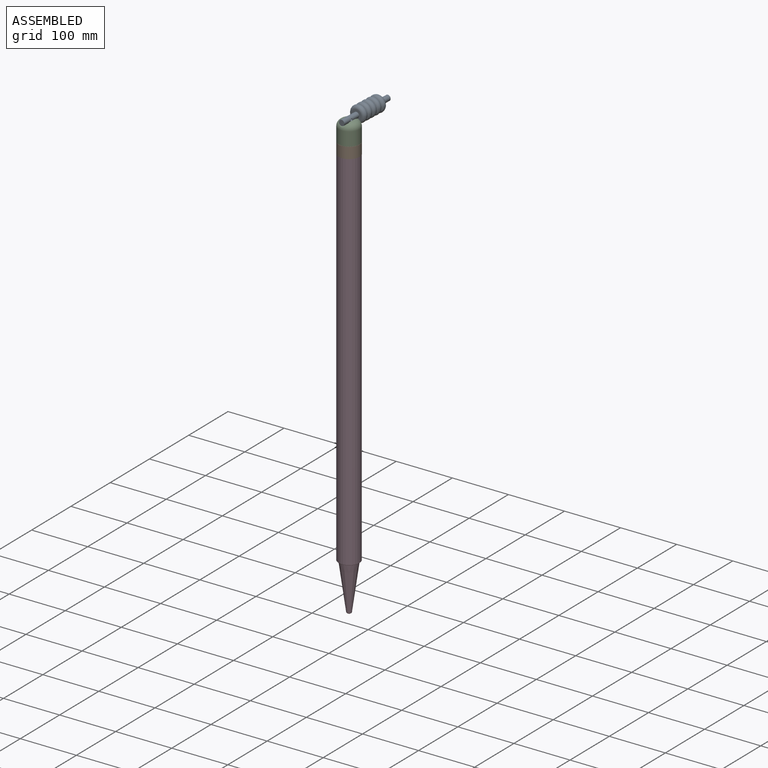
[diagram: assembled view]
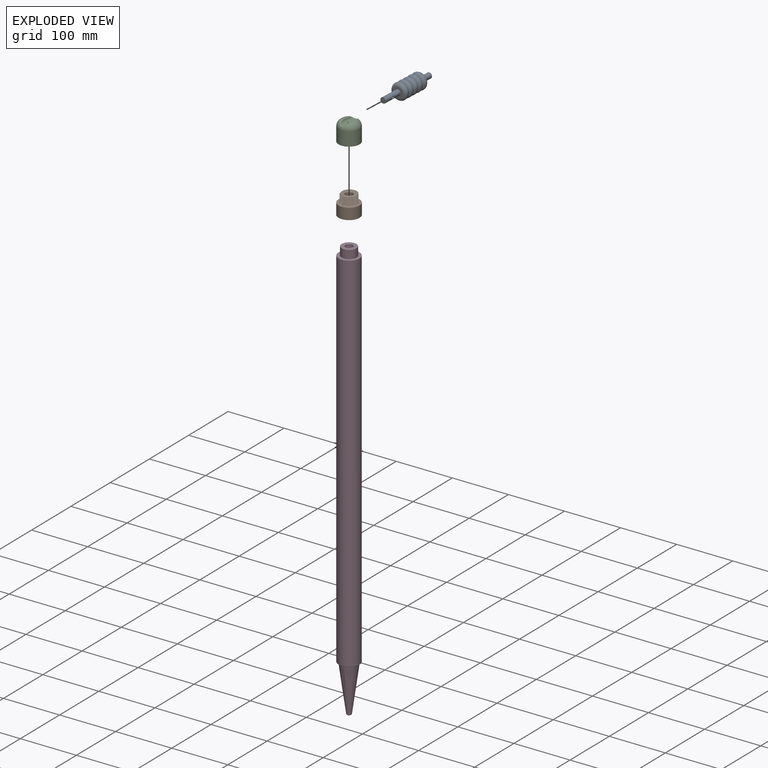
[diagram: exploded view]
GUIDED TOUR — MATED ASSEMBLY (Onshape document b16fe110c0b51191a9bbcc24, AutoMate assembly b16fe110c0b51191a9bbcc24_86ff4663bfaca213187f59ac_10858bafbd74fae6b115f755_default)

This assembly has 4 components, labeled P0..P3 below (a component is one placed occurrence of a part; the same part can appear more than once), held together by 4 mates. A mate is a constraint between two components; its type names the relative motion it leaves free:
  CYLINDRICAL — leaves both rotation about and translation along the listed axis free,
  PLANAR — leaves sliding in the plane through the listed point (normal = the listed direction) and rotation about that normal free.
Axis/direction vectors are unit vectors and 'through' points are millimeter coordinates, both in the assembly's world frame.

MATES
  1. CYLINDRICAL "Cylindrical 3": P0 <-> P2, axis (-0.051, -0.999, 0.000) through (-139.23, 21.93, 151.56) mm
  2. CYLINDRICAL "Cylindrical 2": P1 <-> P2, axis (0.000, 0.000, -1.000) through (-139.23, 21.93, 105.48) mm
  3. CYLINDRICAL "Cylindrical 1": P3 <-> P1, axis (0.000, 0.000, 1.000) through (-139.23, 21.93, 102.98) mm
  4. PLANAR "Planar 3": P1 <-> P3, direction (0.000, 0.000, -1.000) through (-139.23, 21.93, 95.48) mm

ASSEMBLY ORDER
  1. P2 — the base component [order verified]
  2. P1 [order verified]
  3. P3 [order verified]
  4. P0 [order verified]
(P1 verified with a relaxed clearance tolerance: the source model stores slight part interference there.)
Order-tag legend:
  [order verified] — this step's position reverses a verified removal order: the component was checked to insert without passing through the ones already placed.

Of the 4 components, 2 carry the full construction recipe — the FeatureScript program that regenerates the part's solid from scratch; the rest are supplied as boundary geometry only.
Each toured component is shown spotlighted twice — in the assembled view, then in the exploded view, where a leader line traces a displaced component back to its assembled socket (saturated green if recipe-attached, orange if geometry-only; every other component desaturated gray) — followed by its recipe or geometry summary and the mates that hold it.
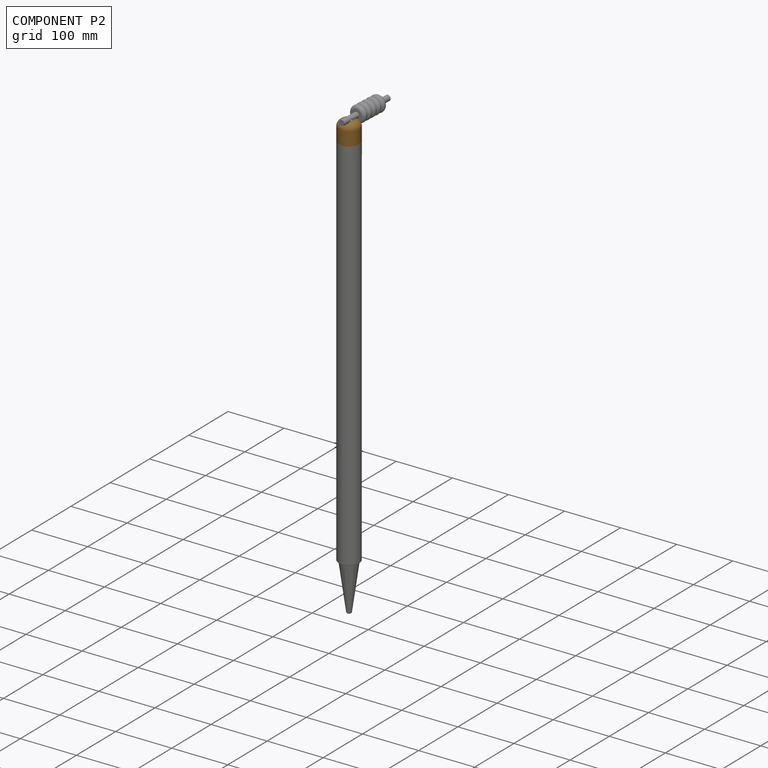
[diagram: component P2 — assembled]
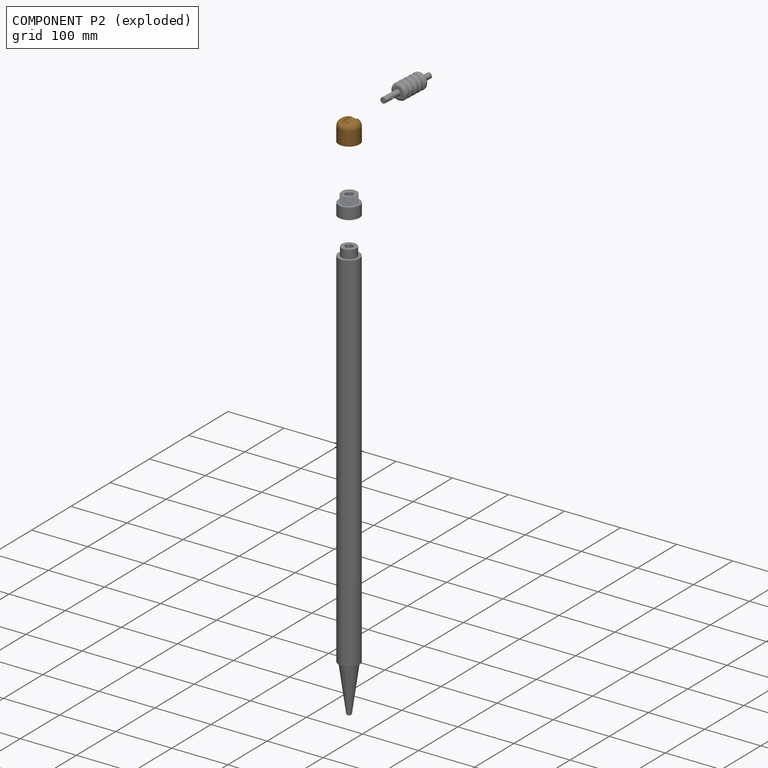
[diagram: component P2 — exploded]
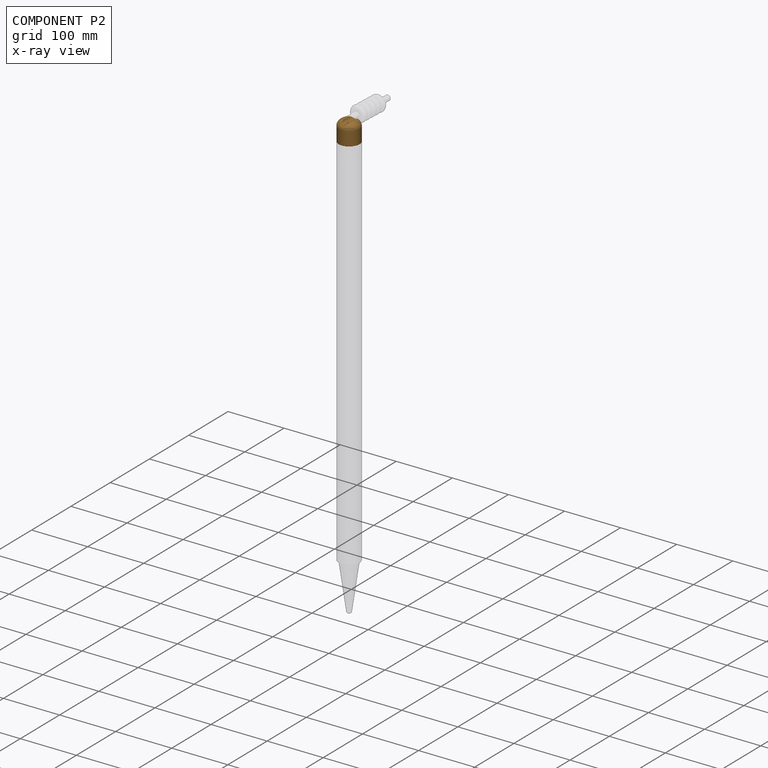
[diagram: component P2 — x-ray view]
COMPONENT P2 — geometry summary (no construction recipe available for this part):
  bounding box: 39.1 x 39.1 x 38.4 mm
  B-rep topology: 1 solid, 16 faces, 82 edges
  volume: 24615 mm^3 (42% of its bounding box)
Held by: CYLINDRICAL mate "Cylindrical 3" to P0; CYLINDRICAL mate "Cylindrical 2" to P1.
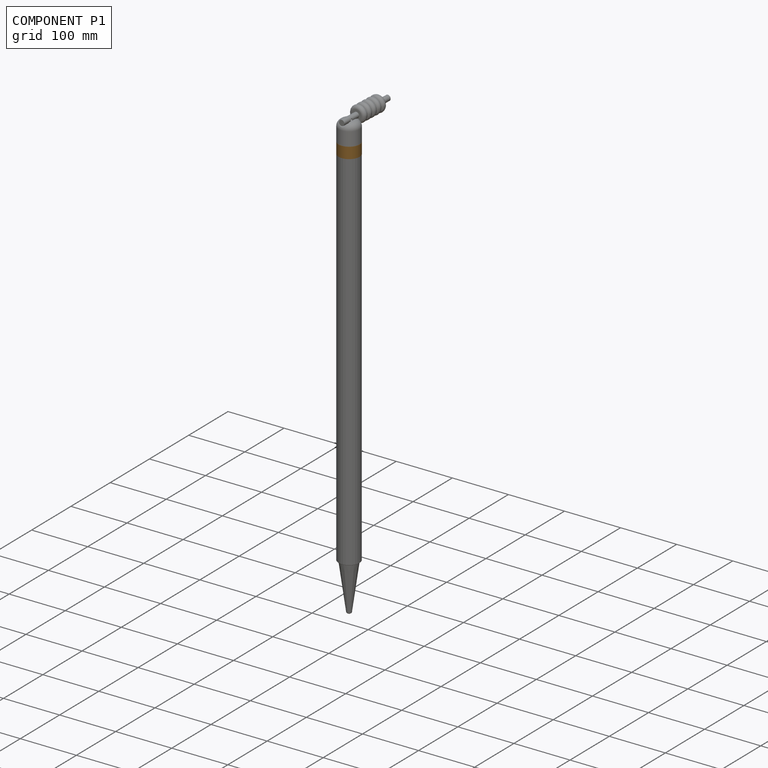
[diagram: component P1 — assembled]
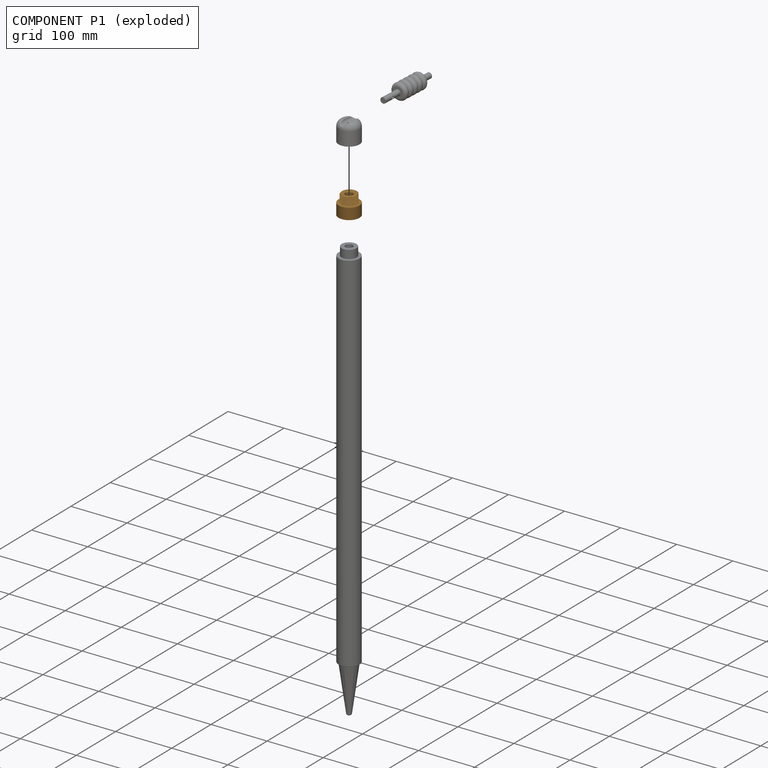
[diagram: component P1 — exploded]
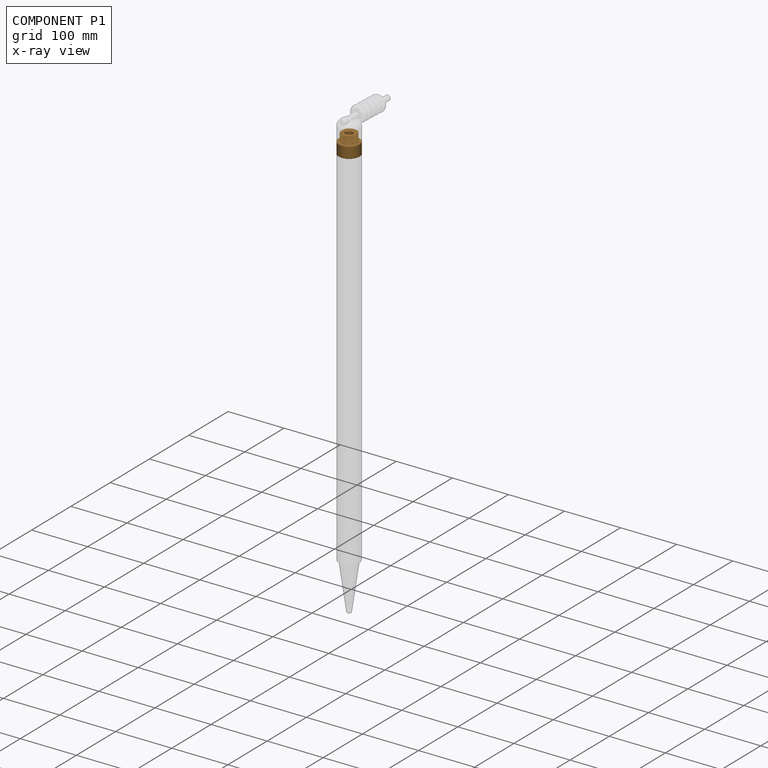
[diagram: component P1 — x-ray view]
COMPONENT P1 — geometry summary (no construction recipe available for this part):
  bounding box: 37.5 x 37.5 x 35.5 mm
  B-rep topology: 1 solid, 131 faces, 760 edges
  volume: 17756 mm^3 (36% of its bounding box)
Held by: CYLINDRICAL mate "Cylindrical 2" to P2; CYLINDRICAL mate "Cylindrical 1" to P3; PLANAR mate "Planar 3" to P3.
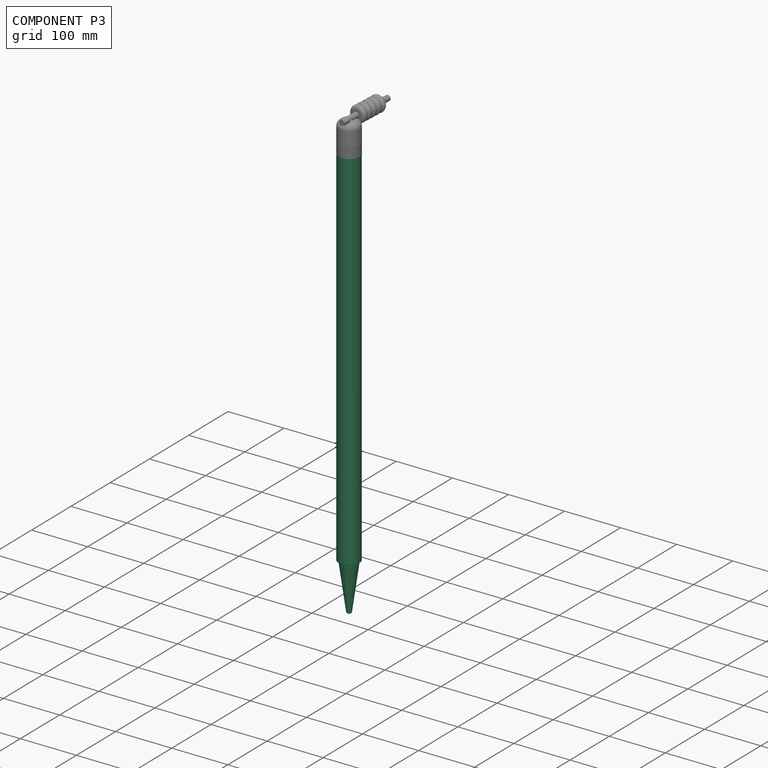
[diagram: component P3 — assembled]
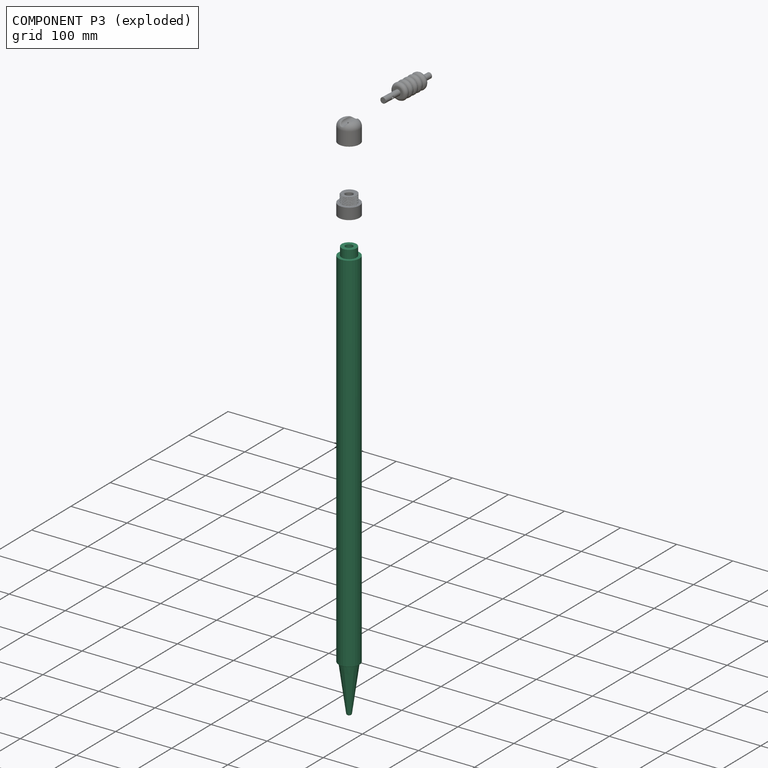
[diagram: component P3 — exploded]
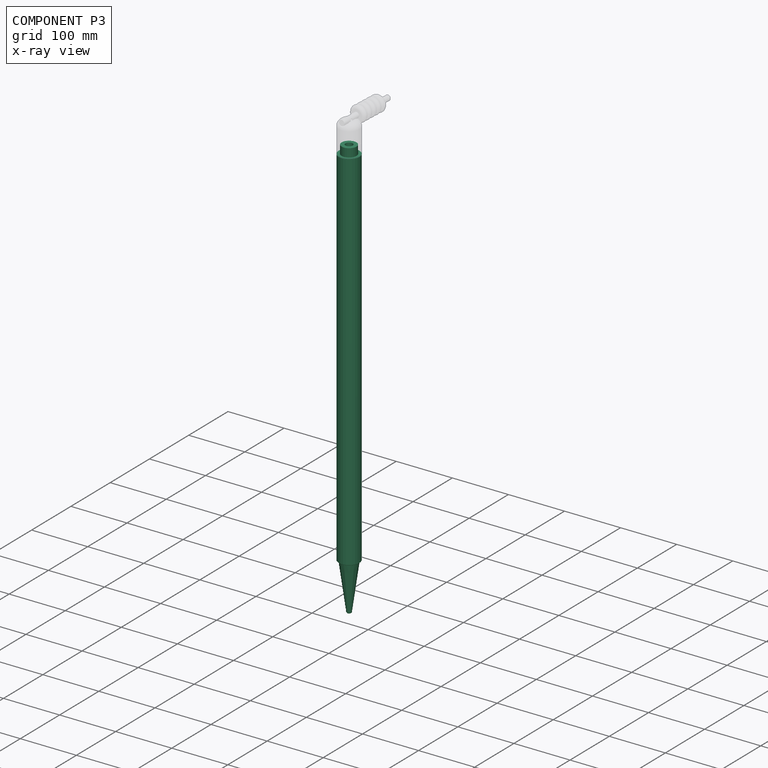
[diagram: component P3 — x-ray view]
COMPONENT P3 — recipe-attached (CADFS 00214204, mesh-verified: the recipe's output STEP matches this component's geometry to below the mesh-comparison resolution (tessellation chordal tolerance ~1.14 mm)).
Held by: CYLINDRICAL mate "Cylindrical 1" to P1; PLANAR mate "Planar 3" to P1.
Construction recipe (FeatureScript — the CAD program that rebuilds this solid; sketch coordinates are in the units given by the * unit suffixes, e.g. mm):

FeatureScript 1511;
import(path : "onshape/std/geometry.fs", version : "1511.0");
import(path : "onshape/std/common.fs", version : "1511.0");
const mm = millimeter;
const VERTEX = EntityType.VERTEX;
const EDGE = EntityType.EDGE;
const FACE = EntityType.FACE;
const BODY = EntityType.BODY;
function v(x, y){return vector(x, y);}
function OD(order){return orderDisambiguation(order);}
function OSD(set){return originalSetDisambiguation(set);}
function TD(topology){return topologyDisambiguation(topology);}
function TDD(query){return trueDependencyDisambiguation(query);}
function sQuery(a, b, c) {return sketchEntityQuery(a, b, c);}

annotation { "Feature Type Name" : "Feature", "Feature Type Description" : "" }
export const myFeature = defineFeature(function(context is Context, id is Id, definition is map)
    precondition{}
    {
        {
            var Q0;
            Q0=qCreatedBy(makeId("Front.planeOp"),FACE);
            var sketch = newSketch(context, id + "F0", { "sketchPlane" : qUnion([Q0])});
            skLineSegment(sketch, "E0", {"start": v(0, 216.86) * mm, "end": v(0, -155.63) * mm, "construction": true});
            skLineSegment(sketch, "E1", {"start": v(-13.25, 740) * mm, "end": v(-18.75, 740) * mm});
            skLineSegment(sketch, "E2", {"start": v(-18.75, 740) * mm, "end": v(-18.75, 86) * mm});
            skLineSegment(sketch, "E3", {"start": v(-17.75, 85) * mm, "end": v(-15.75, 85) * mm});
            skLineSegment(sketch, "E4", {"start": v(-15.75, 85) * mm, "end": v(-4.24, 1.73) * mm});
            skLineSegment(sketch, "E5", {"start": v(-2.26, 0) * mm, "end": v(0, 0) * mm});
            skLineSegment(sketch, "E6", {"start": v(-13.25, 755) * mm, "end": v(-13.25, 740) * mm});
            skLineSegment(sketch, "E7", {"start": v(-13.25, 755) * mm, "end": v(-6.5, 755) * mm});
            skLineSegment(sketch, "E8", {"start": v(-6.5, 755) * mm, "end": v(-6.5, 634) * mm});
            skLineSegment(sketch, "E9", {"start": v(-6.5, 634) * mm, "end": v(0, 634) * mm});
            skLineSegment(sketch, "E10", {"start": v(0, 634) * mm, "end": v(0, 0) * mm});
            skPoint(sketch, "E11.visualSharp", {"position": v(-4, 0) * mm});
            skArc(sketch, "E11.filletArc", {"start": v(-4.24, 1.73) * mm, "mid": v(-3.57, 0.5) * mm, "end": v(-2.26, 0) * mm});
            skPoint(sketch, "E12.visualSharp", {"position": v(-18.75, 85) * mm});
            skArc(sketch, "E12.filletArc", {"start": v(-18.75, 86) * mm, "mid": v(-18.46, 85.3) * mm, "end": v(-17.75, 85) * mm});
            skLineSegment(sketch, "E13", {"start": v(-42.39, 796) * mm, "end": v(43.6, 796) * mm, "construction": true});
            skSolve(sketch);
        }
        {
            var Q0;
            Q0=makeQuery(id+"F0.imprint","IMPRINT",FACE,{"disambiguationData":[TD([[makeQuery(id+"F0.imprint","IMPRINT",EDGE,{"derivedFrom":sQuery(id+"F0.wireOp",EDGE,"E1")}),1.0]])]});
            var Q1;
            Q1=sQuery(id+"F0.wireOp",EDGE,"E10");
            revolve(context, id + "F1", {"entities" : qUnion([Q0]), "axis" : qUnion([Q1]), "revolveType" : RevolveType.FULL});
        }
    });
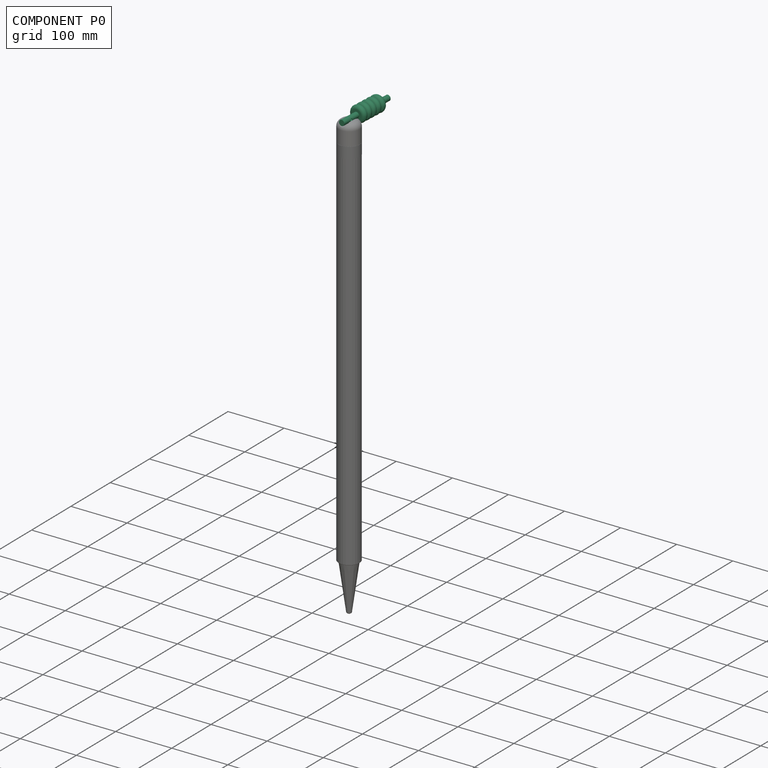
[diagram: component P0 — assembled]
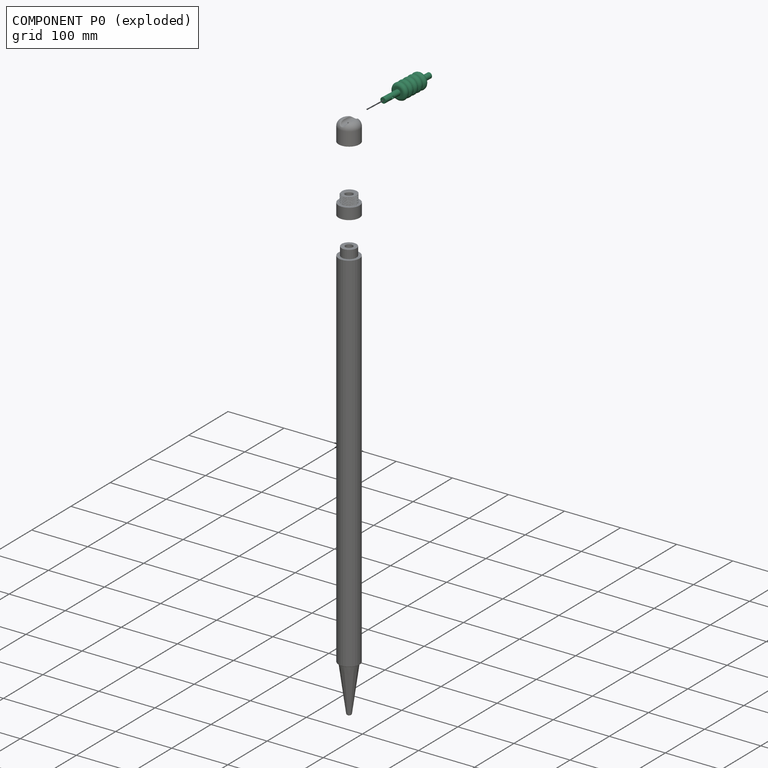
[diagram: component P0 — exploded]
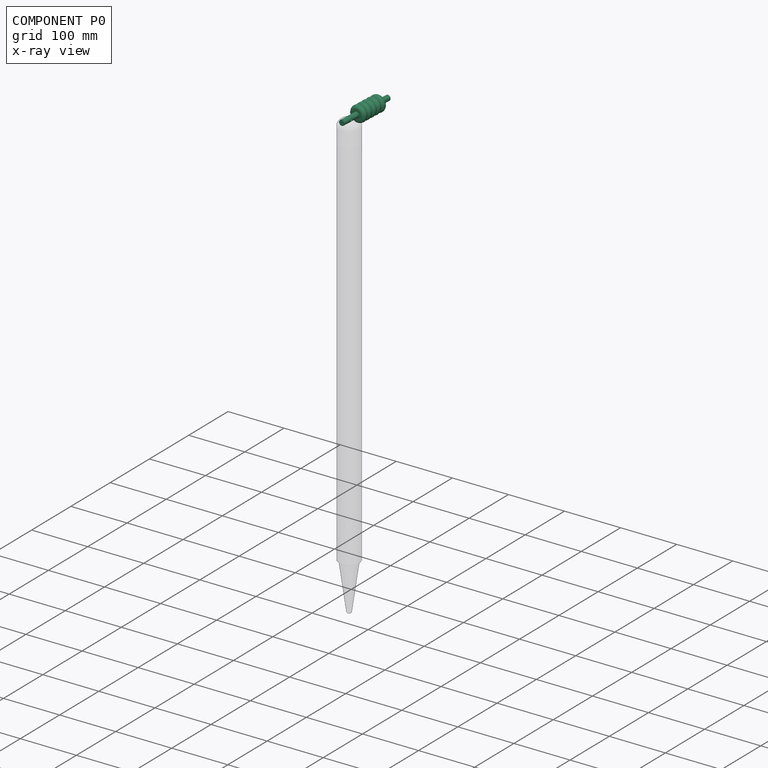
[diagram: component P0 — x-ray view]
COMPONENT P0 — recipe-attached (CADFS 00214205, mesh-verified: the recipe's output STEP matches this component's geometry to below the mesh-comparison resolution (tessellation chordal tolerance ~0.176 mm)).
Held by: CYLINDRICAL mate "Cylindrical 3" to P2.
Construction recipe (FeatureScript — the CAD program that rebuilds this solid; sketch coordinates are in the units given by the * unit suffixes, e.g. mm):

FeatureScript 1511;
import(path : "onshape/std/geometry.fs", version : "1511.0");
import(path : "onshape/std/common.fs", version : "1511.0");
const mm = millimeter;
const VERTEX = EntityType.VERTEX;
const EDGE = EntityType.EDGE;
const FACE = EntityType.FACE;
const BODY = EntityType.BODY;
function v(x, y){return vector(x, y);}
function OD(order){return orderDisambiguation(order);}
function OSD(set){return originalSetDisambiguation(set);}
function TD(topology){return topologyDisambiguation(topology);}
function TDD(query){return trueDependencyDisambiguation(query);}
function sQuery(a, b, c) {return sketchEntityQuery(a, b, c);}

annotation { "Feature Type Name" : "Feature", "Feature Type Description" : "" }
export const myFeature = defineFeature(function(context is Context, id is Id, definition is map)
    precondition{}
    {
        {
            var Q0;
            Q0=qCreatedBy(makeId("Front.planeOp"),FACE);
            var sketch = newSketch(context, id + "F0", { "sketchPlane" : qUnion([Q0])});
            skLineSegment(sketch, "E0", {"start": v(-110, 0) * mm, "end": v(103.89, 0) * mm});
            skLineSegment(sketch, "E1", {"start": v(-110, 0) * mm, "end": v(-110, 5) * mm});
            skLineSegment(sketch, "E2", {"start": v(-110, 5) * mm, "end": v(-75, 5) * mm});
            skLineSegment(sketch, "E3", {"start": v(-75, 5) * mm, "end": v(-75, 9) * mm});
            skArc(sketch, "E4", {"start": v(-64.46, 11.2) * mm, "mid": v(-70.62, 14.38) * mm, "end": v(-75, 9) * mm});
            skLineSegment(sketch, "E5", {"start": v(-75, 9) * mm, "end": v(5.66, 9) * mm, "construction": true});
            skArc(sketch, "E6.1.0.0", {"start": v(-53.46, 11.2) * mm, "mid": v(-58.5, 14.5) * mm, "end": v(-63.54, 11.2) * mm});
            skArc(sketch, "E6.2.0.0", {"start": v(-42.46, 11.2) * mm, "mid": v(-47.5, 14.5) * mm, "end": v(-52.54, 11.2) * mm});
            skArc(sketch, "E6.3.0.0", {"start": v(-31.46, 11.2) * mm, "mid": v(-36.5, 14.5) * mm, "end": v(-41.54, 11.2) * mm});
            skArc(sketch, "E6.4.0.0", {"start": v(-20, 9) * mm, "mid": v(-24.38, 14.38) * mm, "end": v(-30.54, 11.2) * mm});
            skLineSegment(sketch, "E6.direction1", {"start": v(-75, 9) * mm, "end": v(-65, 9) * mm, "construction": true});
            skPoint(sketch, "E7.visualSharp", {"position": v(-64, 9) * mm});
            skArc(sketch, "E7.filletArc", {"start": v(-64.46, 11.2) * mm, "mid": v(-64, 10.9) * mm, "end": v(-63.54, 11.2) * mm});
            skPoint(sketch, "E8.visualSharp", {"position": v(-53, 9) * mm});
            skArc(sketch, "E8.filletArc", {"start": v(-53.46, 11.2) * mm, "mid": v(-53, 10.9) * mm, "end": v(-52.54, 11.2) * mm});
            skPoint(sketch, "E9.visualSharp", {"position": v(-42, 9) * mm});
            skArc(sketch, "E9.filletArc", {"start": v(-42.46, 11.2) * mm, "mid": v(-42, 10.9) * mm, "end": v(-41.54, 11.2) * mm});
            skPoint(sketch, "E10.visualSharp", {"position": v(-31, 9) * mm});
            skArc(sketch, "E10.filletArc", {"start": v(-31.46, 11.2) * mm, "mid": v(-31, 10.9) * mm, "end": v(-30.54, 11.2) * mm});
            skLineSegment(sketch, "E11", {"start": v(-20, 9) * mm, "end": v(-20, 5) * mm});
            skLineSegment(sketch, "E12", {"start": v(-20, 5) * mm, "end": v(0, 5) * mm});
            skLineSegment(sketch, "E13", {"start": v(0, 5) * mm, "end": v(0, 0) * mm});
            skLineSegment(sketch, "E14", {"start": v(-69.5, 0) * mm, "end": v(-69.5, 14.5) * mm, "construction": true});
            skSolve(sketch);
        }
        {
            var Q0;
            Q0 = qSketchRegion(id + "F0", true);
            var Q1;
            Q1=sQuery(id+"F0.wireOp",EDGE,"E0");
            revolve(context, id + "F1", {"entities" : qUnion([Q0]), "axis" : qUnion([Q1]), "revolveType" : RevolveType.FULL});
        }
        {
            var Q0;
            Q0=qCreatedBy(makeId("Front.planeOp"),FACE);
            var sketch = newSketch(context, id + "F2", { "sketchPlane" : qUnion([Q0])});
            skCircle(sketch, "E15", {"center": v(-92.81, 0) * mm, "radius": 2.25 * mm});
            skCircle(sketch, "E16", {"center": v(-92.81, 0) * mm, "radius": 0.75 * mm});
            skSolve(sketch);
        }
        {
            var Q0;
            Q0 = qSketchRegion(id + "F2", true);
            extrude(context, id + "F3", {"entities" : qUnion([Q0]), "operationType" : NewBodyOperationType.REMOVE, "oppositeDirection" : true, "depth" : 25 * mm, "offsetDistance" : 25 * mm});
        }
        {
            var Q0;
            Q0=makeQuery(id+"F2.imprint","IMPRINT",FACE,{"disambiguationData":[TD([[makeQuery(id+"F2.imprint","IMPRINT",EDGE,{"derivedFrom":sQuery(id+"F2.wireOp",EDGE,"E16")}),1.0]])]});
            extrude(context, id + "F4", {"entities" : qUnion([Q0]), "operationType" : NewBodyOperationType.REMOVE, "depth" : 25 * mm, "offsetDistance" : 25 * mm, "hasSecondDirection" : true, "secondDirectionOppositeDirection" : true, "secondDirectionDepth" : 25 * mm});
        }
    });
PROVENANCE & LICENSES
Assembly (occurrences, transforms, mates, per-part STEP geometry): AutoMate dataset, Zenodo record 7776208, CC0.
Construction recipes: CADFS (HuggingFace VladPyatov/CADFS, CC-BY-4.0, layered over the ABC dataset), FeatureScript reconstruction programs keyed by ABC model id.
Join: ABC meta listings map ABC model id -> Onshape documentId; within a shared document, parts are matched by geometric signature (bounding-box dims + volume at 0.1% relative tolerance, exact B-rep face/solid counts).
Verification: 2 of this assembly's 4 components carry a recipe attachment, and every attachment is mesh-verified: the CADFS STEP and the AutoMate member STEP were compared as meshes in their shared local frame (symmetric sampled-point-to-mesh distance); worst across the 2 attachments: below the mesh-comparison resolution (tessellation chordal tolerance ~1.14 mm) on a 757 mm part.
Renders: orthographic iso camera (az 35 / el 25); the floor grid conveys scale (grid pitch printed in each image; no ruler). In the exploded view each component is displaced by its stored offset vector: the offsets alone carry the explosion direction (mate normal/axis signs are not orientation cues and do not encode it), and separation distances are assigned per mate-chain, not proportionally to assembly-order depth.
